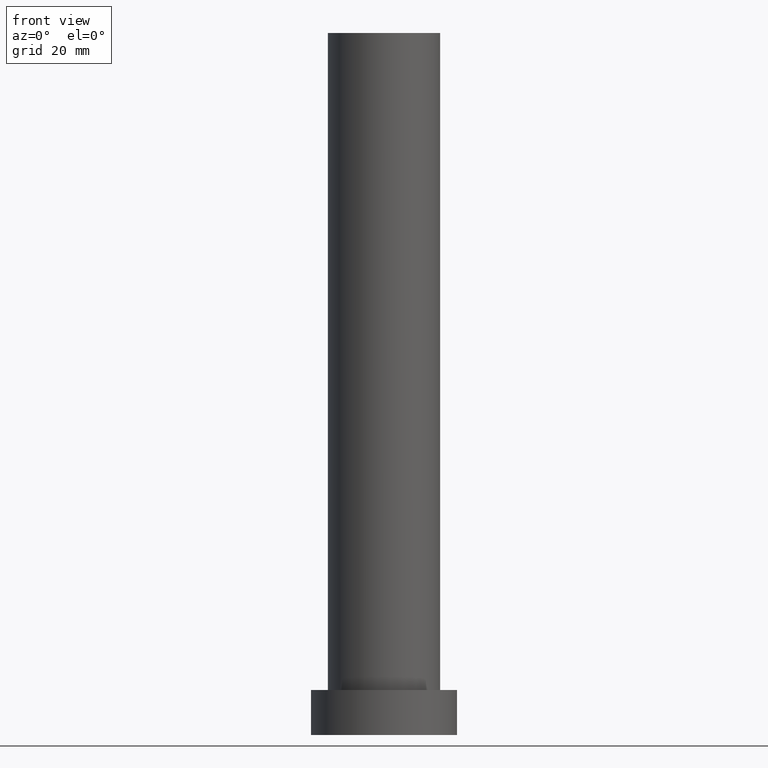
[diagram: clean part render]
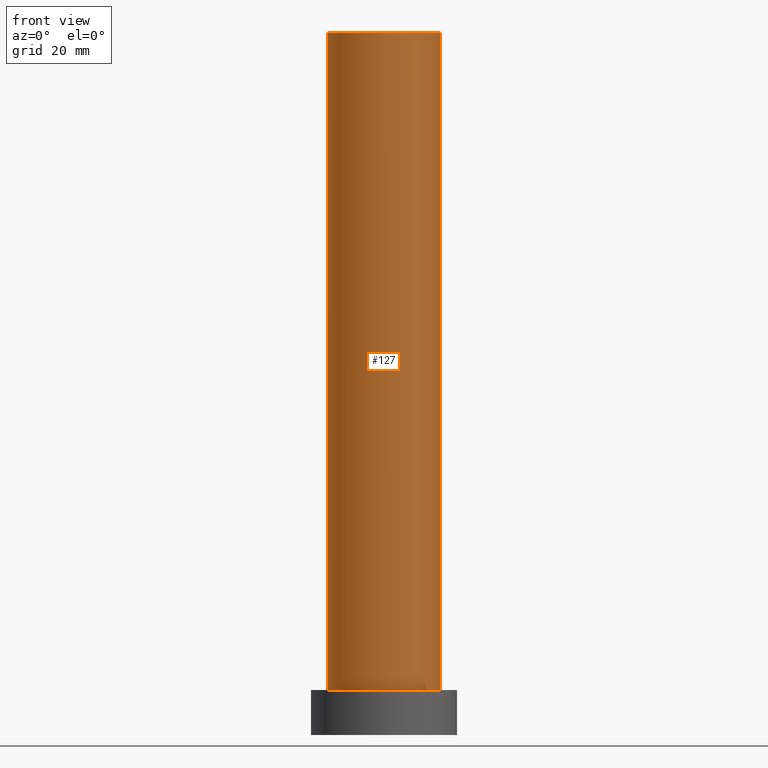
[diagram: same view with one face highlighted and labeled with its STEP entity id]
A machine part, front view. The second image highlights one B-rep face of the part: STEP entity #127.
In plain terms, the highlighted cylindrical surface (partial cylindrical patch) has radius 10 mm, axis along (-0, -0, -1).
Its self-contained STEP definition (entity closure, byte-faithful):
#2 = VERTEX_POINT ( 'NONE', #186 ) ;
#3 = DIRECTION ( 'NONE',  ( 1.000000000000000000, 0.000000000000000000, 0.000000000000000000 ) ) ;
#19 = VERTEX_POINT ( 'NONE', #71 ) ;
#22 = DIRECTION ( 'NONE',  ( 1.000000000000000000, 0.000000000000000000, 0.000000000000000000 ) ) ;
#26 = DIRECTION ( 'NONE',  ( -0.000000000000000000, -0.000000000000000000, -1.000000000000000000 ) ) ;
#50 = VERTEX_POINT ( 'NONE', #73 ) ;
#52 = ORIENTED_EDGE ( 'NONE', *, *, #154, .T. ) ;
#54 = VECTOR ( 'NONE', #26, 1000.000000000000000 ) ;
#64 = DIRECTION ( 'NONE',  ( -0.000000000000000000, -0.000000000000000000, -1.000000000000000000 ) ) ;
#71 = CARTESIAN_POINT ( 'NONE',  ( 10.00000000000000178, 1.224646799147353454E-15, 125.0000000000000000 ) ) ;
#73 = CARTESIAN_POINT ( 'NONE',  ( 10.00000000000000178, 1.224646799147353454E-15, 8.000000000000000000 ) ) ;
#75 = EDGE_LOOP ( 'NONE', ( #170, #114, #208, #52 ) ) ;
#76 = CARTESIAN_POINT ( 'NONE',  ( 0.000000000000000000, 0.000000000000000000, 125.0000000000000000 ) ) ;
#106 = CARTESIAN_POINT ( 'NONE',  ( 10.00000000000000178, 1.224646799147353454E-15, 125.0000000000000000 ) ) ;
#114 = ORIENTED_EDGE ( 'NONE', *, *, #130, .F. ) ;
#119 = DIRECTION ( 'NONE',  ( 0.000000000000000000, 0.000000000000000000, 1.000000000000000000 ) ) ;
#125 = LINE ( 'NONE', #106, #138 ) ;
#127 = ADVANCED_FACE ( 'NONE', ( #188 ), #254, .T. ) ;
#130 = EDGE_CURVE ( 'NONE', #2, #19, #165, .T. ) ;
#135 = DIRECTION ( 'NONE',  ( -1.000000000000000000, 0.000000000000000000, 0.000000000000000000 ) ) ;
#138 = VECTOR ( 'NONE', #64, 1000.000000000000000 ) ;
#154 = EDGE_CURVE ( 'NONE', #232, #50, #248, .T. ) ;
#165 = CIRCLE ( 'NONE', #187, 10.00000000000000178 ) ;
#170 = ORIENTED_EDGE ( 'NONE', *, *, #239, .F. ) ;
#175 = LINE ( 'NONE', #222, #54 ) ;
#178 = AXIS2_PLACEMENT_3D ( 'NONE', #219, #195, #3 ) ;
#186 = CARTESIAN_POINT ( 'NONE',  ( -10.00000000000000178, 0.000000000000000000, 125.0000000000000000 ) ) ;
#187 = AXIS2_PLACEMENT_3D ( 'NONE', #193, #119, #22 ) ;
#188 = FACE_OUTER_BOUND ( 'NONE', #75, .T. ) ;
#192 = EDGE_CURVE ( 'NONE', #2, #232, #175, .T. ) ;
#193 = CARTESIAN_POINT ( 'NONE',  ( 0.000000000000000000, 0.000000000000000000, 125.0000000000000000 ) ) ;
#195 = DIRECTION ( 'NONE',  ( 0.000000000000000000, 0.000000000000000000, 1.000000000000000000 ) ) ;
#208 = ORIENTED_EDGE ( 'NONE', *, *, #192, .T. ) ;
#219 = CARTESIAN_POINT ( 'NONE',  ( 0.000000000000000000, 0.000000000000000000, 8.000000000000000000 ) ) ;
#222 = CARTESIAN_POINT ( 'NONE',  ( -10.00000000000000178, 0.000000000000000000, 125.0000000000000000 ) ) ;
#229 = AXIS2_PLACEMENT_3D ( 'NONE', #76, #234, #135 ) ;
#232 = VERTEX_POINT ( 'NONE', #244 ) ;
#234 = DIRECTION ( 'NONE',  ( -0.000000000000000000, -0.000000000000000000, -1.000000000000000000 ) ) ;
#239 = EDGE_CURVE ( 'NONE', #19, #50, #125, .T. ) ;
#244 = CARTESIAN_POINT ( 'NONE',  ( -10.00000000000000178, 0.000000000000000000, 8.000000000000000000 ) ) ;
#248 = CIRCLE ( 'NONE', #178, 10.00000000000000178 ) ;
#254 = CYLINDRICAL_SURFACE ( 'NONE', #229, 10.00000000000000178 ) ;